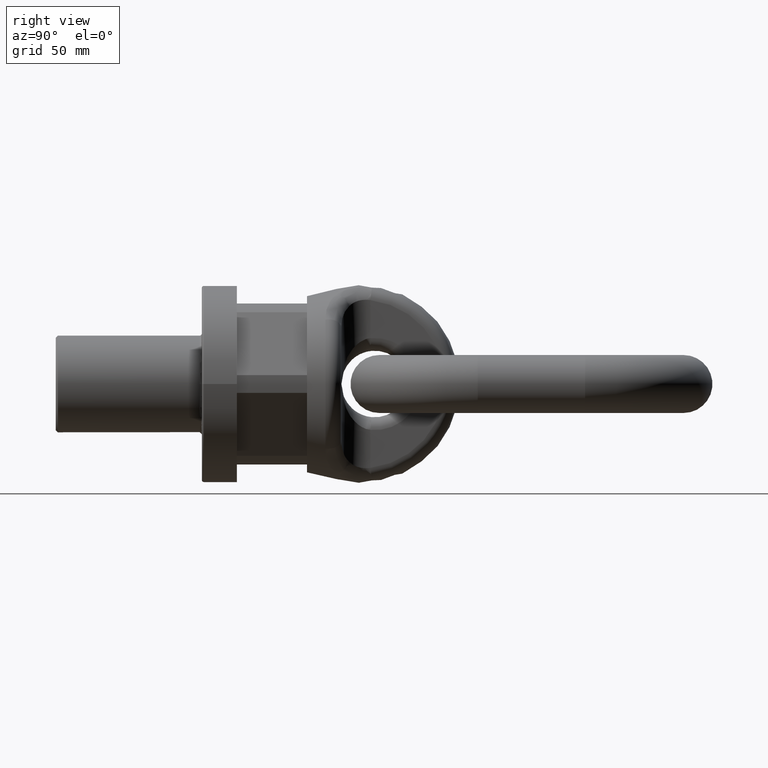
[diagram: clean part render]
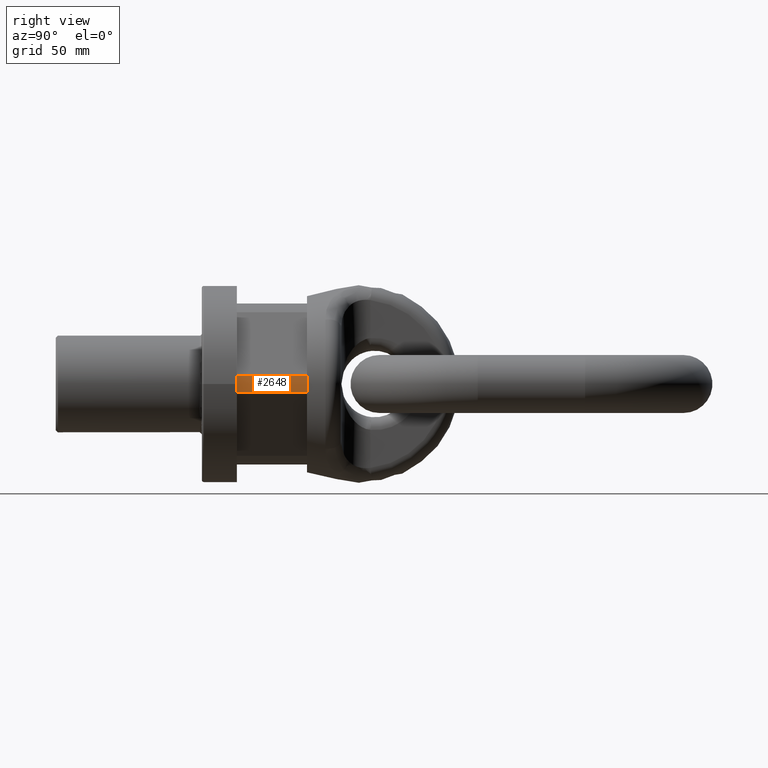
[diagram: same view with one face highlighted and labeled with its STEP entity id]
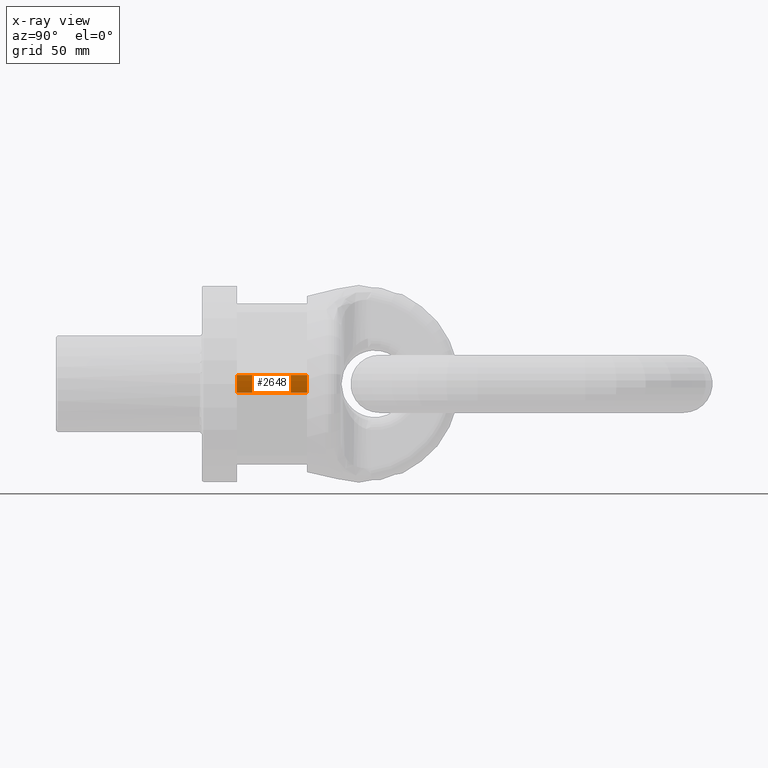
[diagram: x-ray of the same camera — body ghosted, the highlighted face saturated]
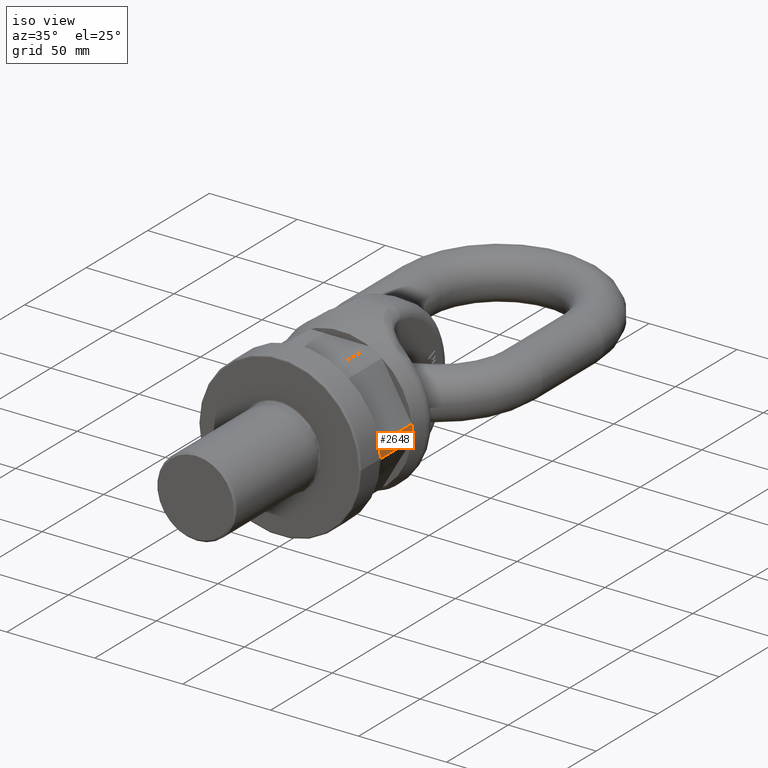
[diagram: same view with one face highlighted and labeled with its STEP entity id]
A machine part, right view. The second image highlights one B-rep face of the part: STEP entity #2648.
The next image is the same camera in x-ray: the body ghosted, the highlighted face saturated — about 0% of this face is hidden behind the body in this view.
A second angle (iso view) of the same face is appended — the face is thin or edge-on in the first view.
In plain terms, the highlighted cylindrical surface (partial cylindrical patch) has radius 41.1362 mm, axis along (-0, 1, 0).
Its self-contained STEP definition (entity closure, byte-faithful):
#1806=FACE_OUTER_BOUND('',#3071,.T.);
#2014=CYLINDRICAL_SURFACE('',#5623,41.1362066797608);
#2048=LINE('',#6615,#2304);
#2052=LINE('',#6623,#2308);
#2304=VECTOR('',#5850,1.);
#2308=VECTOR('',#5856,1.);
#2648=ADVANCED_FACE('',(#1806),#2014,.T.);
#3071=EDGE_LOOP('',(#3400,#3401,#3402,#3403));
#3400=ORIENTED_EDGE('',*,*,#4947,.F.);
#3401=ORIENTED_EDGE('',*,*,#4958,.T.);
#3402=ORIENTED_EDGE('',*,*,#4971,.T.);
#3403=ORIENTED_EDGE('',*,*,#4962,.T.);
#4539=VERTEX_POINT('',#6571);
#4549=VERTEX_POINT('',#6591);
#4557=VERTEX_POINT('',#6616);
#4560=VERTEX_POINT('',#6624);
#4947=EDGE_CURVE('',#4549,#4539,#5537,.T.);
#4958=EDGE_CURVE('',#4549,#4557,#2048,.T.);
#4962=EDGE_CURVE('',#4560,#4539,#2052,.T.);
#4971=EDGE_CURVE('',#4557,#4560,#5543,.T.);
#5537=CIRCLE('',#5605,41.1362066797608);
#5543=CIRCLE('',#5619,41.1362066797608);
#5605=AXIS2_PLACEMENT_3D('',#6592,#5827,#5828);
#5619=AXIS2_PLACEMENT_3D('',#6637,#5873,#5874);
#5623=AXIS2_PLACEMENT_3D('',#6641,#5881,#5882);
#5827=DIRECTION('',(4.81111242522174E-17,-1.,0.));
#5828=DIRECTION('',(-1.,-8.43404687010335E-17,0.));
#5850=DIRECTION('',(-2.4492935982947E-17,1.,0.));
#5856=DIRECTION('',(2.4492935982947E-17,-1.,0.));
#5873=DIRECTION('',(0.,-1.,0.));
#5874=DIRECTION('',(0.,0.,-1.));
#5881=DIRECTION('',(-2.4492935982947E-17,1.,0.));
#5882=DIRECTION('',(-1.,-2.4492935982947E-17,0.));
#6571=CARTESIAN_POINT('',(40.9307959284594,16.3333333333333,4.10578185767495));
#6591=CARTESIAN_POINT('',(40.9307959284594,16.3333333333333,-4.10578185767493));
#6592=CARTESIAN_POINT('',(-4.00051287721468E-16,16.3333333333333,0.));
#6615=CARTESIAN_POINT('',(40.9307959284594,2.07083935363146E-16,-4.10578185767493));
#6616=CARTESIAN_POINT('',(40.9307959284594,49.,-4.10578185767492));
#6623=CARTESIAN_POINT('',(40.9307959284594,2.07083935363145E-16,4.10578185767495));
#6624=CARTESIAN_POINT('',(40.9307959284594,49.,4.10578185767492));
#6637=CARTESIAN_POINT('',(-1.20015386316441E-15,49.,0.));
#6641=CARTESIAN_POINT('',(0.,0.,0.));